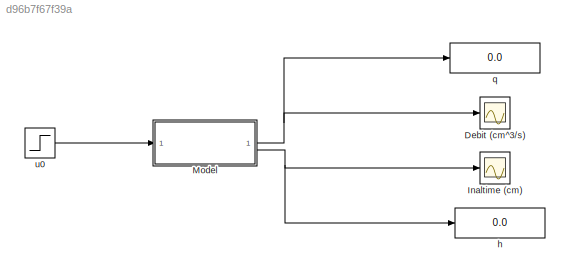
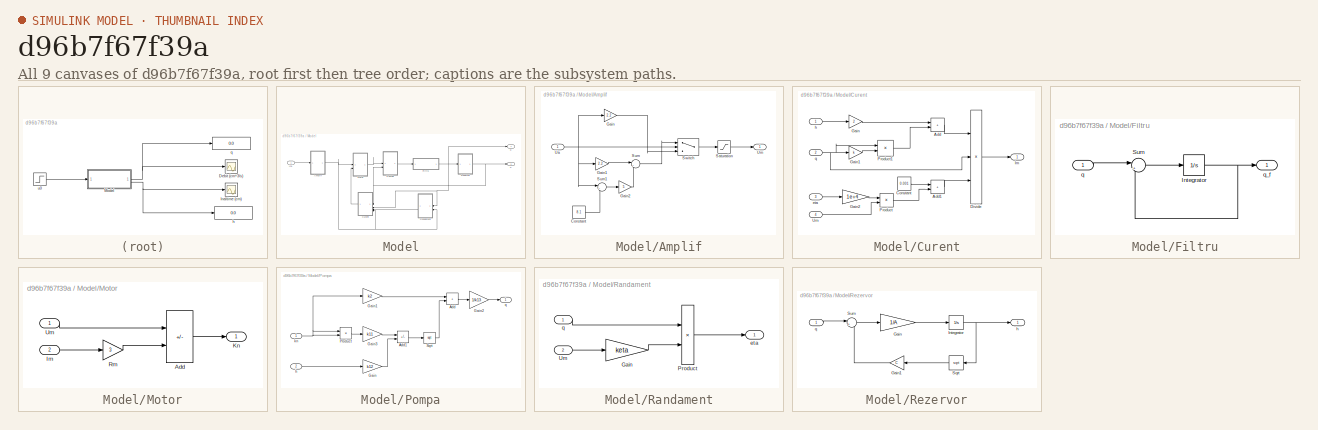
[diagram: thumbnail index - all 9 canvases of the model, root first then tree order]
MODEL slx_d96b7f67f39a
KIND model
CONFIG AbsTol = auto
CONFIG EnableMultiTasking = off
CONFIG FixedStep = auto
CONFIG MaxStep = auto
CONFIG MinStep = auto
CONFIG RelTol = 1e-3
CONFIG SampleTimeConstraint = Unconstrained
CONFIG SolverName = VariableStepAuto
CONFIG StartTime = 0.0
CONFIG StopTime = 10
BLOCK [Scope] Debit (cm^3//s)
  Floating = off
  NumInputPorts = 1
  ScopeSpecificationString = Simulink.scopes.TimeScopeBlockCfg('CurrentConfiguration', extmgr.ConfigurationSet(extmgr.Configuration('Core','General UI',true),extmgr.Configuration('Core','Source UI',true),extmgr.Configuration('Sources','WiredSimulink',true),extmgr.Configuration('Visuals','Time Domain',true,'SerializedDisplays',{struct('MinYLimReal','27.24305','MaxYLimReal','34.81253','YLabelReal','','MinYLimMag','27.24305','Ma...<+1715ch>
BLOCK [Scope] Inaltime (cm) 
  Floating = off
  NumInputPorts = 1
  ScopeSpecificationString = Simulink.scopes.TimeScopeBlockCfg('CurrentConfiguration', extmgr.ConfigurationSet(extmgr.Configuration('Core','General UI',true),extmgr.Configuration('Core','Source UI',true),extmgr.Configuration('Sources','WiredSimulink',true,'DataLoggingVariableName','ScopeData1'),extmgr.Configuration('Visuals','Time Domain',true,'SerializedDisplays',{struct('MinYLimReal','16.20927','MaxYLimReal','16.4166','YLab...<+1710ch>
BLOCK [SubSystem] Model
BLOCK [SubSystem] Model/Amplif
BLOCK [Constant] Model/Amplif/Constant
  Value = 8.1
BLOCK [Gain] Model/Amplif/Gain
  Gain = 2.2
BLOCK [Gain] Model/Amplif/Gain1
  Gain = 2.2
BLOCK [Gain] Model/Amplif/Gain2
  Gain = 5
BLOCK [Saturate] Model/Amplif/Saturation
  LowerLimit = 0
  UpperLimit = 22
BLOCK [Sum] Model/Amplif/Sum
  Inputs = |++
BLOCK [Sum] Model/Amplif/Sum1
  Inputs = |+-
BLOCK [Switch] Model/Amplif/Switch
  Criteria = u2 > Threshold
  InputSameDT = off
  SaturateOnIntegerOverflow = off
  Threshold = 8.1
BLOCK [Inport] Model/Amplif/Ua
BLOCK [Outport] Model/Amplif/Um
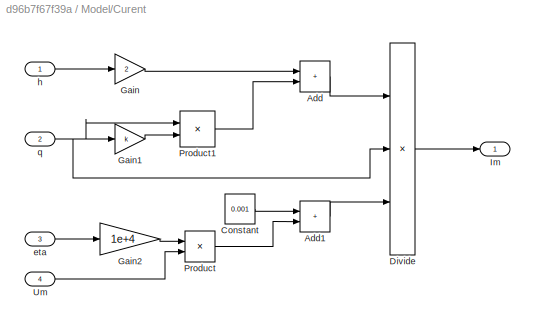
BLOCK [SubSystem] Model/Curent
BLOCK [Sum] Model/Curent/Add
  IconShape = rectangular
BLOCK [Sum] Model/Curent/Add1
  IconShape = rectangular
BLOCK [Constant] Model/Curent/Constant
  Value = 0.001
BLOCK [Product] Model/Curent/Divide
  Inputs = **/
BLOCK [Gain] Model/Curent/Gain
  Gain = 2
BLOCK [Gain] Model/Curent/Gain1
  Gain = k
BLOCK [Gain] Model/Curent/Gain2
  Gain = 1e+4
BLOCK [Outport] Model/Curent/Im
BLOCK [Product] Model/Curent/Product
BLOCK [Product] Model/Curent/Product1
BLOCK [Inport] Model/Curent/Um
  Port = 4
BLOCK [Inport] Model/Curent/eta
  Port = 3
BLOCK [Inport] Model/Curent/h
BLOCK [Inport] Model/Curent/q
  Port = 2
BLOCK [SubSystem] Model/Filtru
BLOCK [Integrator] Model/Filtru/Integrator
  InitialCondition = qo
BLOCK [Sum] Model/Filtru/Sum
  Inputs = |+-
BLOCK [Inport] Model/Filtru/q
BLOCK [Outport] Model/Filtru/q_f
BLOCK [Inport] Model/In1
BLOCK [SubSystem] Model/Motor
BLOCK [Sum] Model/Motor/Add
  IconShape = rectangular
  Inputs = +-
BLOCK [Inport] Model/Motor/Im
  Port = 2
BLOCK [Outport] Model/Motor/Kn
BLOCK [Gain] Model/Motor/Rm
  Gain = 3
BLOCK [Inport] Model/Motor/Um
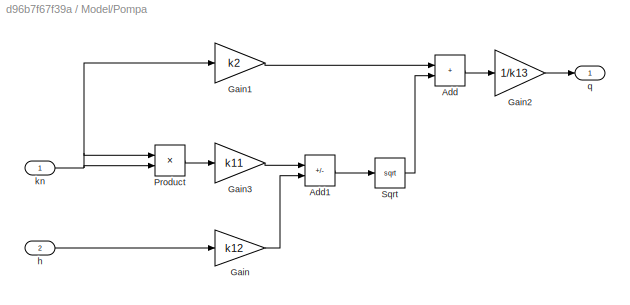
BLOCK [SubSystem] Model/Pompa
BLOCK [Sum] Model/Pompa/Add
  IconShape = rectangular
BLOCK [Sum] Model/Pompa/Add1
  IconShape = rectangular
  Inputs = +-
BLOCK [Gain] Model/Pompa/Gain
  Gain = k12
BLOCK [Gain] Model/Pompa/Gain1
  Gain = k2
BLOCK [Gain] Model/Pompa/Gain2
  Gain = 1/k13
BLOCK [Gain] Model/Pompa/Gain3
  Gain = k11
BLOCK [Product] Model/Pompa/Product
BLOCK [Sqrt] Model/Pompa/Sqrt
BLOCK [Inport] Model/Pompa/h
  Port = 2
BLOCK [Inport] Model/Pompa/kn
BLOCK [Outport] Model/Pompa/q
BLOCK [SubSystem] Model/Randament
BLOCK [Gain] Model/Randament/Gain
  Gain = keta
BLOCK [Product] Model/Randament/Product
BLOCK [Inport] Model/Randament/Um
  Port = 2
BLOCK [Outport] Model/Randament/eta
BLOCK [Inport] Model/Randament/q
BLOCK [SubSystem] Model/Rezervor
BLOCK [Gain] Model/Rezervor/Gain
  Gain = 1/A
BLOCK [Gain] Model/Rezervor/Gain1
  Gain = C
BLOCK [Integrator] Model/Rezervor/Integrator
  InitialCondition = ho
BLOCK [Sqrt] Model/Rezervor/Sqrt
BLOCK [Sum] Model/Rezervor/Sum
  Inputs = |+-
BLOCK [Outport] Model/Rezervor/h
BLOCK [Inport] Model/Rezervor/q
BLOCK [Outport] Model/h
  Port = 2
BLOCK [Outport] Model/q
BLOCK [Display] h
  Decimation = 1
BLOCK [Display] q
  Decimation = 1
BLOCK [Step] u0
  After = uss
  Before = uo
  SampleTime = 0
  Time = 0
LINE Model/Amplif/Constant:1 -> Model/Amplif/Sum1:2
LINE Model/Amplif/Gain1:1 -> Model/Amplif/Sum:1
LINE Model/Amplif/Gain2:1 -> Model/Amplif/Sum:2
LINE Model/Amplif/Gain:1 -> Model/Amplif/Switch:3
LINE Model/Amplif/Saturation:1 -> Model/Amplif/Um:1
LINE Model/Amplif/Sum1:1 -> Model/Amplif/Gain2:1
LINE Model/Amplif/Sum:1 -> Model/Amplif/Switch:1
LINE Model/Amplif/Switch:1 -> Model/Amplif/Saturation:1
NET Model/Amplif/Ua:1 -> Model/Amplif/Gain1:1, Model/Amplif/Gain:1, Model/Amplif/Sum1:1, Model/Amplif/Switch:2
NET Model/Amplif:1 -> Model/Curent:4, Model/Motor:1, Model/Randament:2
LINE Model/Curent/Add1:1 -> Model/Curent/Divide:3
LINE Model/Curent/Add:1 -> Model/Curent/Divide:1
LINE Model/Curent/Constant:1 -> Model/Curent/Add1:1
LINE Model/Curent/Divide:1 -> Model/Curent/Im:1
LINE Model/Curent/Gain1:1 -> Model/Curent/Product1:2
LINE Model/Curent/Gain2:1 -> Model/Curent/Product:1
LINE Model/Curent/Gain:1 -> Model/Curent/Add:1
LINE Model/Curent/Product1:1 -> Model/Curent/Add:2
LINE Model/Curent/Product:1 -> Model/Curent/Add1:2
LINE Model/Curent/Um:1 -> Model/Curent/Product:2
LINE Model/Curent/eta:1 -> Model/Curent/Gain2:1
LINE Model/Curent/h:1 -> Model/Curent/Gain:1
NET Model/Curent/q:1 -> Model/Curent/Divide:2, Model/Curent/Gain1:1, Model/Curent/Product1:1
LINE Model/Curent:1 -> Model/Motor:2
NET Model/Filtru/Integrator:1 -> Model/Filtru/Sum:2, Model/Filtru/q_f:1
LINE Model/Filtru/Sum:1 -> Model/Filtru/Integrator:1
LINE Model/Filtru/q:1 -> Model/Filtru/Sum:1
NET Model/Filtru:1 -> Model/Curent:2, Model/Randament:1, Model/Rezervor:1, Model/q:1
LINE Model/In1:1 -> Model/Amplif:1
LINE Model/Motor/Add:1 -> Model/Motor/Kn:1
LINE Model/Motor/Im:1 -> Model/Motor/Rm:1
LINE Model/Motor/Rm:1 -> Model/Motor/Add:2
LINE Model/Motor/Um:1 -> Model/Motor/Add:1
LINE Model/Motor:1 -> Model/Pompa:1
LINE Model/Pompa/Add1:1 -> Model/Pompa/Sqrt:1
LINE Model/Pompa/Add:1 -> Model/Pompa/Gain2:1
LINE Model/Pompa/Gain1:1 -> Model/Pompa/Add:1
LINE Model/Pompa/Gain2:1 -> Model/Pompa/q:1
LINE Model/Pompa/Gain3:1 -> Model/Pompa/Add1:1
LINE Model/Pompa/Gain:1 -> Model/Pompa/Add1:2
LINE Model/Pompa/Product:1 -> Model/Pompa/Gain3:1
LINE Model/Pompa/Sqrt:1 -> Model/Pompa/Add:2
LINE Model/Pompa/h:1 -> Model/Pompa/Gain:1
NET Model/Pompa/kn:1 -> Model/Pompa/Gain1:1, Model/Pompa/Product:1, Model/Pompa/Product:2
LINE Model/Pompa:1 -> Model/Filtru:1
LINE Model/Randament/Gain:1 -> Model/Randament/Product:2
LINE Model/Randament/Product:1 -> Model/Randament/eta:1
LINE Model/Randament/Um:1 -> Model/Randament/Gain:1
LINE Model/Randament/q:1 -> Model/Randament/Product:1
LINE Model/Randament:1 -> Model/Curent:3
LINE Model/Rezervor/Gain1:1 -> Model/Rezervor/Sum:2
LINE Model/Rezervor/Gain:1 -> Model/Rezervor/Integrator:1
NET Model/Rezervor/Integrator:1 -> Model/Rezervor/Sqrt:1, Model/Rezervor/h:1
LINE Model/Rezervor/Sqrt:1 -> Model/Rezervor/Gain1:1
LINE Model/Rezervor/Sum:1 -> Model/Rezervor/Gain:1
LINE Model/Rezervor/q:1 -> Model/Rezervor/Sum:1
NET Model/Rezervor:1 -> Model/Curent:1, Model/Pompa:2, Model/h:1
NET Model:1 -> Debit (cm^3//s):1, q:1
NET Model:2 -> Inaltime (cm) :1, h:1
LINE u0:1 -> Model:1
note: NET lines group one-source signal fan-out (src -> all destinations, sorted); 1:1 wires keep LINE
